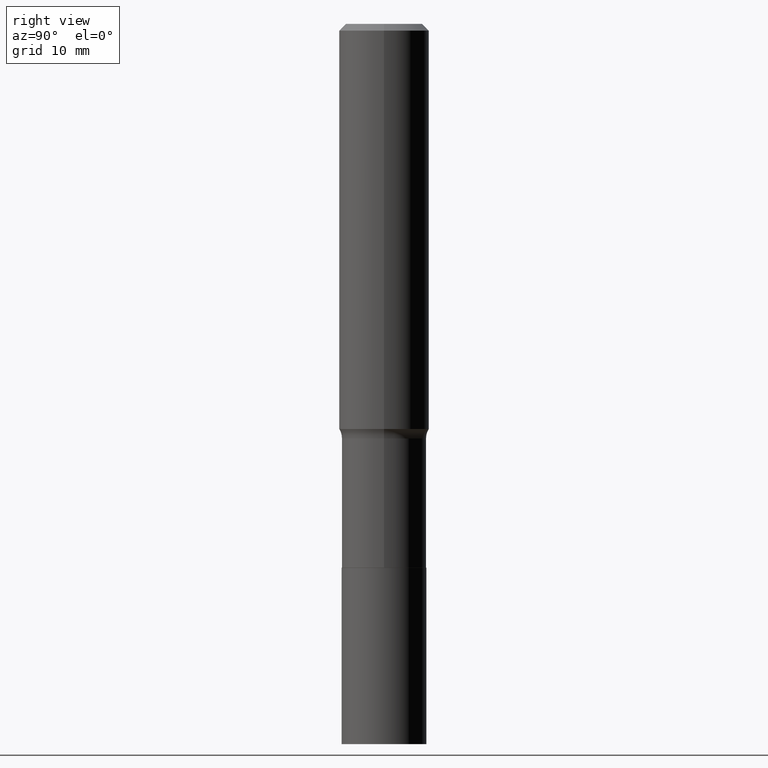
[diagram: clean part render]
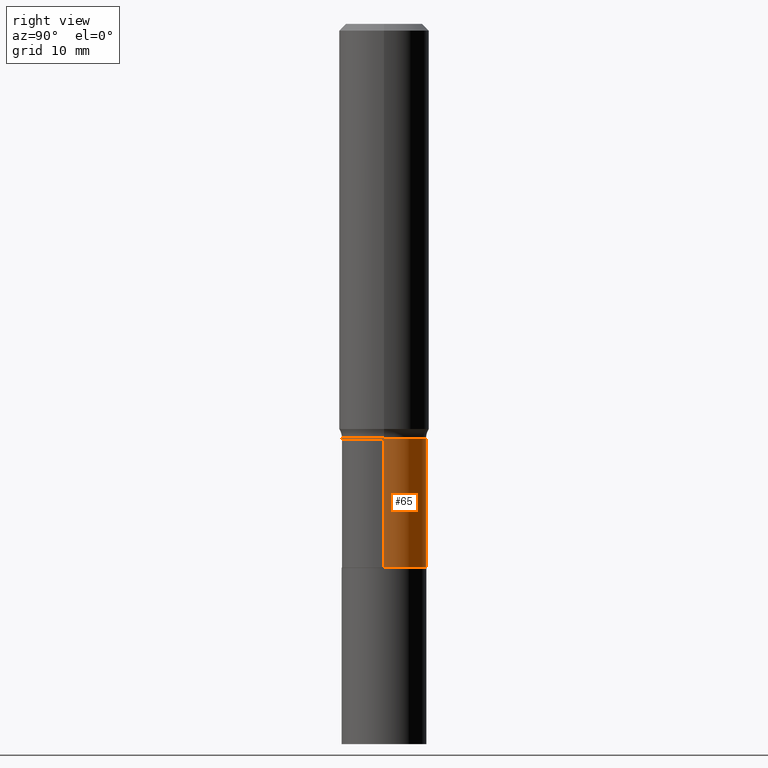
[diagram: same view with one face highlighted and labeled with its STEP entity id]
A machine part, right view. The second image highlights one B-rep face of the part: STEP entity #65.
In plain terms, the highlighted cylindrical surface (partial cylindrical patch) has radius 4.7003 mm, axis along (-0, 0, 1).
Its self-contained STEP definition (entity closure, byte-faithful):
#18 = ORIENTED_EDGE ( 'NONE', *, *, #117, .F. ) ;
#24 = CARTESIAN_POINT ( 'NONE',  ( 4.433879492494271668E-29, -6.330404815456507888E-15, -1.813100000000000156 ) ) ;
#26 = VECTOR ( 'NONE', #66, 39.37007874015748143 ) ;
#31 = EDGE_CURVE ( 'NONE', #275, #225, #168, .T. ) ;
#35 = DIRECTION ( 'NONE',  ( -2.445468806185136597E-29, 3.491481338843145583E-15, 1.000000000000000000 ) ) ;
#39 = AXIS2_PLACEMENT_3D ( 'NONE', #42, #342, #339 ) ;
#42 = CARTESIAN_POINT ( 'NONE',  ( 5.813123899182689408E-29, -8.299600290564042799E-15, -2.377100000000000435 ) ) ;
#63 = ORIENTED_EDGE ( 'NONE', *, *, #31, .F. ) ;
#65 = ADVANCED_FACE ( 'NONE', ( #382 ), #271, .T. ) ;
#66 = DIRECTION ( 'NONE',  ( -2.445468806185136877E-29, 3.491481338843145188E-15, 1.000000000000000000 ) ) ;
#73 = AXIS2_PLACEMENT_3D ( 'NONE', #165, #138, #200 ) ;
#80 = ORIENTED_EDGE ( 'NONE', *, *, #299, .T. ) ;
#114 = VECTOR ( 'NONE', #119, 39.37007874015748143 ) ;
#117 = EDGE_CURVE ( 'NONE', #216, #275, #435, .T. ) ;
#119 = DIRECTION ( 'NONE',  ( -2.445468806185136877E-29, 3.491481338843145188E-15, 1.000000000000000000 ) ) ;
#138 = DIRECTION ( 'NONE',  ( -2.445468806185136597E-29, 3.491481338843145583E-15, 1.000000000000000000 ) ) ;
#144 = EDGE_LOOP ( 'NONE', ( #163, #80, #63, #18 ) ) ;
#152 = LINE ( 'NONE', #192, #114 ) ;
#160 = AXIS2_PLACEMENT_3D ( 'NONE', #24, #35, #312 ) ;
#163 = ORIENTED_EDGE ( 'NONE', *, *, #356, .T. ) ;
#165 = CARTESIAN_POINT ( 'NONE',  ( 0.000000000000000000, 0.000000000000000000, 0.000000000000000000 ) ) ;
#168 = CIRCLE ( 'NONE', #160, 0.1850499999999999090 ) ;
#192 = CARTESIAN_POINT ( 'NONE',  ( -0.1850499999999999368, 1.314859332524064945E-15, -9.102489384516700747E-30 ) ) ;
#200 = DIRECTION ( 'NONE',  ( 1.000000000000000000, -6.982962677686267499E-15, 4.876176775795935793E-29 ) ) ;
#216 = VERTEX_POINT ( 'NONE', #410 ) ;
#225 = VERTEX_POINT ( 'NONE', #371 ) ;
#251 = CARTESIAN_POINT ( 'NONE',  ( 0.1850499999999999368, -1.292197243505843287E-15, 9.023365123610376264E-30 ) ) ;
#271 = CYLINDRICAL_SURFACE ( 'NONE', #73, 0.1850499999999999368 ) ;
#275 = VERTEX_POINT ( 'NONE', #417 ) ;
#299 = EDGE_CURVE ( 'NONE', #443, #225, #152, .T. ) ;
#312 = DIRECTION ( 'NONE',  ( 1.000000000000000000, -6.982962677686270655E-15, 0.000000000000000000 ) ) ;
#339 = DIRECTION ( 'NONE',  ( 1.000000000000000000, -6.982962677686272233E-15, 0.000000000000000000 ) ) ;
#342 = DIRECTION ( 'NONE',  ( -2.445468806185136597E-29, 3.491481338843145583E-15, 1.000000000000000000 ) ) ;
#356 = EDGE_CURVE ( 'NONE', #216, #443, #392, .T. ) ;
#371 = CARTESIAN_POINT ( 'NONE',  ( -0.1850499999999999090, -6.000143220486209610E-15, -1.813100000000000156 ) ) ;
#382 = FACE_OUTER_BOUND ( 'NONE', #144, .T. ) ;
#392 = CIRCLE ( 'NONE', #39, 0.1850499999999999923 ) ;
#410 = CARTESIAN_POINT ( 'NONE',  ( 0.1850499999999999923, -9.591797534069887861E-15, -2.377100000000000435 ) ) ;
#417 = CARTESIAN_POINT ( 'NONE',  ( 0.1850499999999999090, -7.622602058962351372E-15, -1.813100000000000156 ) ) ;
#435 = LINE ( 'NONE', #251, #26 ) ;
#443 = VERTEX_POINT ( 'NONE', #457 ) ;
#457 = CARTESIAN_POINT ( 'NONE',  ( -0.1850499999999999923, -6.000143220486209610E-15, -2.377100000000000435 ) ) ;